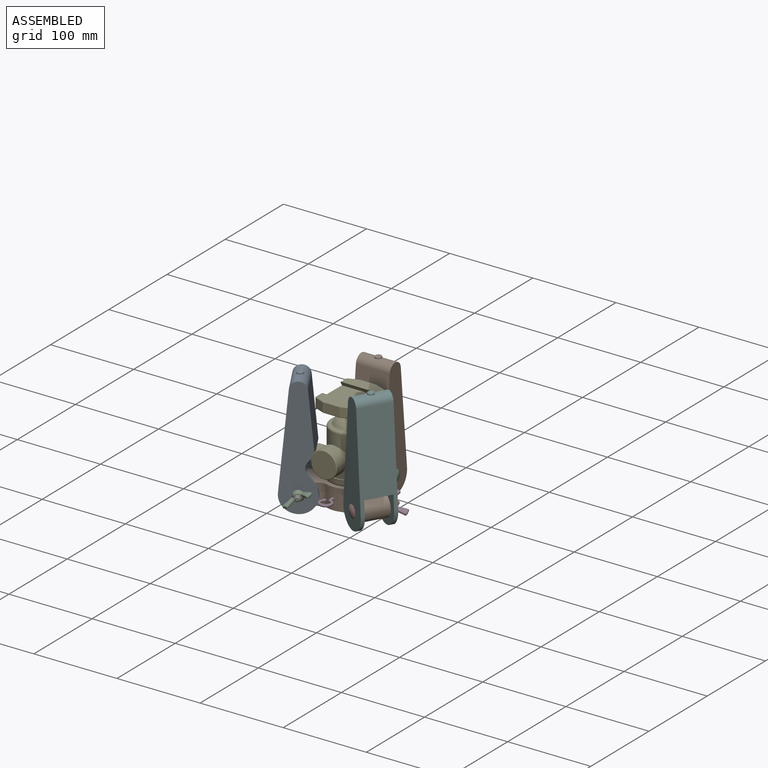
[diagram: assembled view]
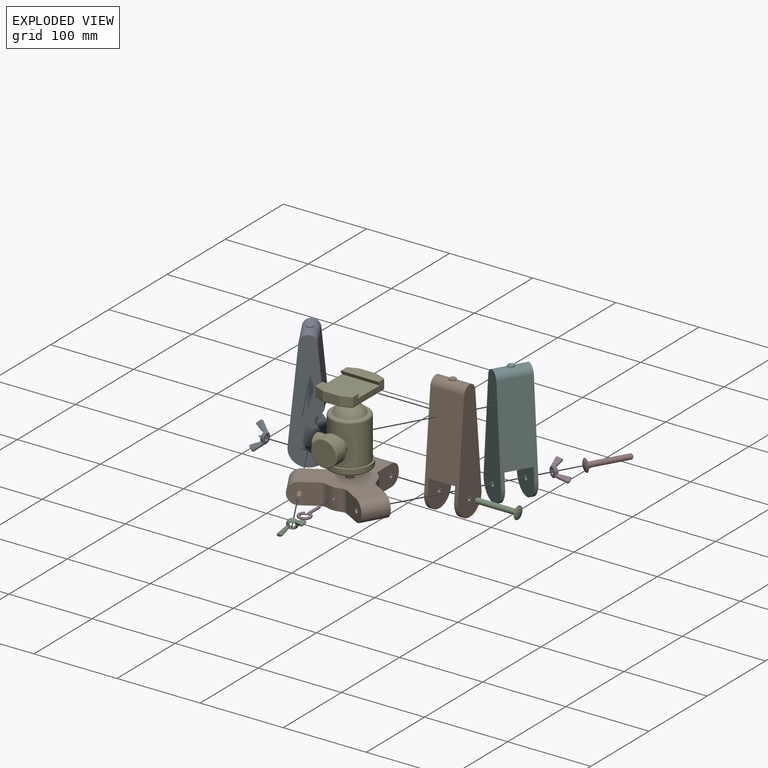
[diagram: exploded view]
GUIDED TOUR — MATED ASSEMBLY WITH SUBASSEMBLIES (Onshape document 450d4b0042331eae24bbd60c, AutoMate assembly 450d4b0042331eae24bbd60c_d984854fb3dad78ea3269862_093a6ce35e05ea192c00fd4e_default)

This assembly has 21 component occurrences arranged in 12 top-level units: 9 individual components plus 3 subassemblies (S0, S1, S2). The tour has two levels: first the top level, where each subassembly is treated as one rigid unit; then each subassembly is toured internally in its own section (nesting deeper than one subassembly level is flattened into its subassembly's section).

Components are labeled P0..P20 across the whole record; subassembly units are labeled S0..S2. A mate is a constraint between two units; its type names the relative motion it leaves free:
  FASTENED — locks the two components together rigidly (no relative motion),
  REVOLUTE — leaves rotation about the listed axis free (a hinge).
Axis/direction vectors are unit vectors and 'through' points are millimeter coordinates, both in the assembly's world frame.

TOP-LEVEL MATES (between units; each subassembly's internal mates are listed in its own section)
  1. FASTENED "Fastened 4": P10 <-> S0, direction (0.500, -0.866, 0.000) through (-52.70, -6.90, -12.70) mm
  2. REVOLUTE "Revolute 2": S1 <-> P16, axis (-1.000, 0.000, 0.000) through (15.88, 49.09, -12.70) mm
  3. FASTENED "Fastened 8": P3 <-> S1, direction (-1.000, 0.000, 0.000) through (20.38, 49.09, -12.70) mm
  4. REVOLUTE "Revolute 1": P7 <-> P16, axis (0.000, 0.000, -1.000) through (0.00, 0.00, 0.00) mm
  5. FASTENED "Fastened 2": P20 <-> P16, direction (0.000, 1.000, 0.000) through (0.00, -15.88, -12.70) mm
  6. REVOLUTE "Revolute 4": S0 <-> P16, axis (-0.500, 0.866, 0.000) through (-34.57, -38.29, -12.70) mm
  7. REVOLUTE "Revolute 3": S2 <-> P16, axis (-0.500, -0.866, 0.000) through (50.45, -10.79, -12.70) mm
  8. FASTENED "Fastened 6": P11 <-> S2, direction (0.500, 0.866, 0.000) through (32.32, -42.19, -12.70) mm
  9. FASTENED "Fastened 5": P6 <-> S2, direction (-0.500, -0.866, 0.000) through (52.70, -6.90, -12.70) mm
  10. FASTENED "Fastened 7": P12 <-> S1, direction (1.000, 0.000, 0.000) through (-20.37, 49.09, -12.70) mm
  11. FASTENED "Fastened 3": P19 <-> S0, direction (-0.500, 0.866, 0.000) through (-32.32, -42.19, -12.70) mm

TOP-LEVEL ASSEMBLY ORDER
  1. P16 — the base component [order heuristic]
  2. S0 — core [order heuristic]
  3. S2 — core [order heuristic]
  4. P3 — core [order heuristic]
  5. P6 — core [order heuristic]
  6. P10 — core [order heuristic]
  7. P11 — core [order heuristic]
  8. P19 — core [order heuristic]
  9. P7 [order verified]
  10. S1 [order verified]
  11. P12 [order verified]
  12. P20 [order verified]
Order-tag legend:
  [order verified] — this step's position reverses a verified removal order: the component was checked to insert without passing through the ones already placed.
  [order heuristic] — the first 8 components form the assembly's core: parts whose collision-free extraction could not be verified, listed in mate-graph order.

Of the 21 component occurrences, 4 carry the full construction recipe — the FeatureScript program that regenerates the part's solid from scratch; the rest are supplied as boundary geometry only. Each toured unit is shown spotlighted twice — assembled, then exploded with a leader line back to its socket (green = recipe-attached component, orange = geometry-only, blue = subassembly unit; the rest desaturated gray).
NOTE — this tour is split across 2 documents so each fits a 32k-token context. This is document 1: the component sections continue in the remaining 1 document, each repeating the header above.
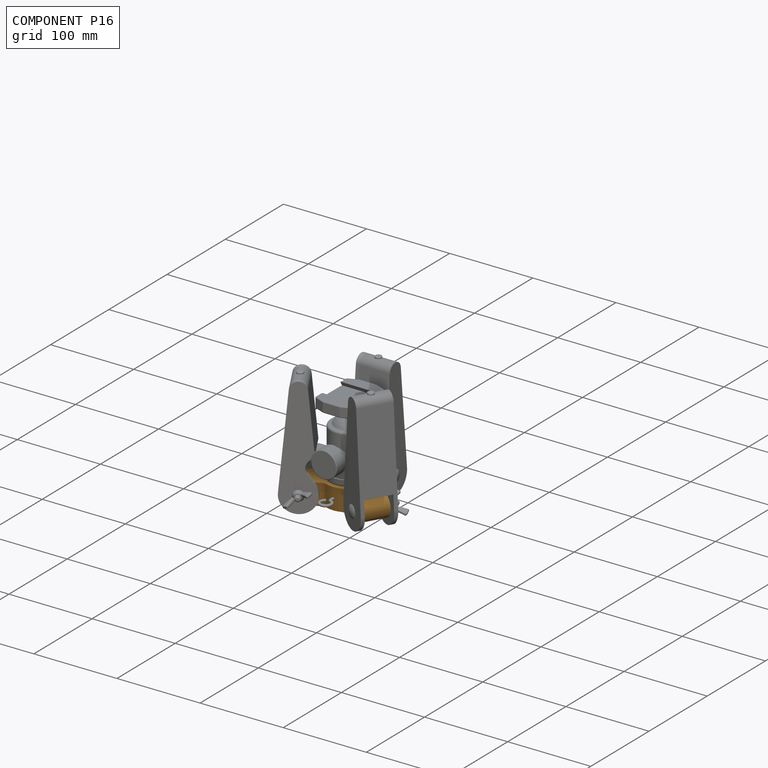
[diagram: component P16 — assembled]
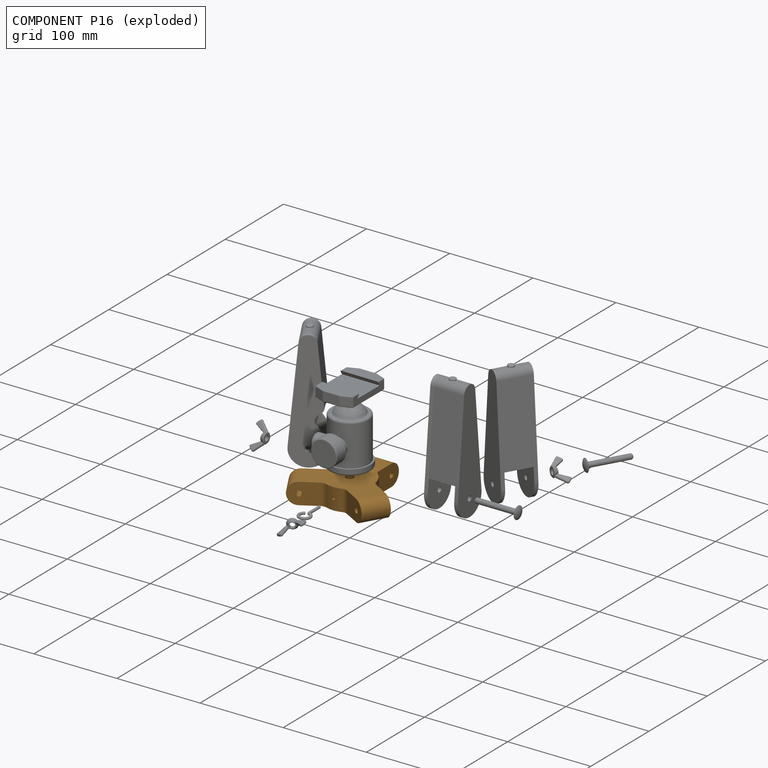
[diagram: component P16 — exploded]
COMPONENT P16 — geometry summary (no construction recipe available for this part):
  bounding box: 122.9 x 106.4 x 25.4 mm
  B-rep topology: 1 solid, 28 faces, 152 edges
  volume: 135256 mm^3 (41% of its bounding box)
  symmetry: mirror-symmetric across its x mid-plane
Held by: REVOLUTE mate "Revolute 2" to P2; REVOLUTE mate "Revolute 1" to P7; FASTENED mate "Fastened 2" to P20; REVOLUTE mate "Revolute 4" to P0; REVOLUTE mate "Revolute 3" to P9.
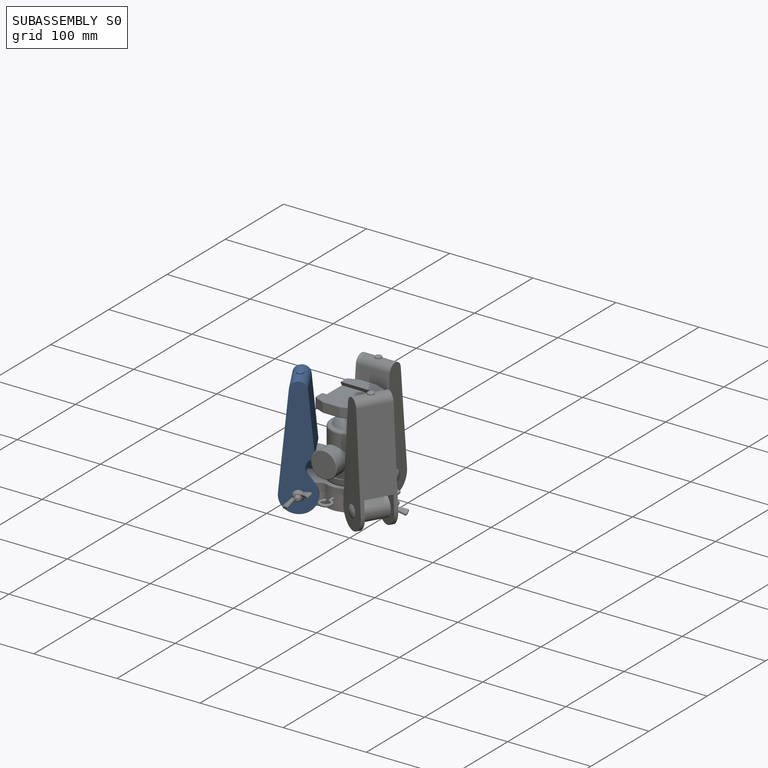
[diagram: subassembly S0 — assembled]
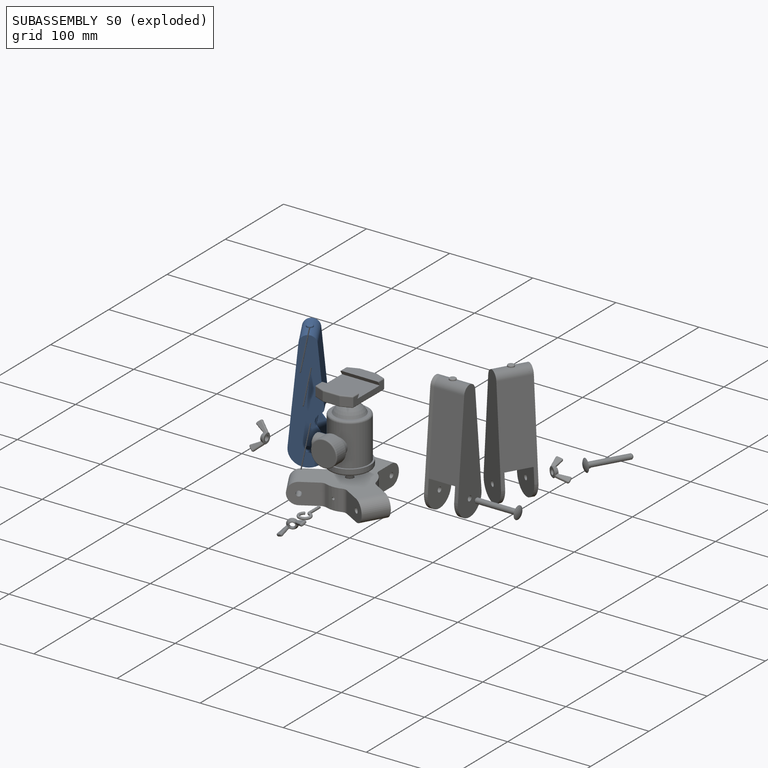
[diagram: subassembly S0 — exploded]
SUBASSEMBLY S0 — 4 components (P0, P1, P4, P8), of which 0 recipe-attached; toured below.
Held by: FASTENED mate "Fastened 4" to P10; REVOLUTE mate "Revolute 4" to P16; FASTENED mate "Fastened 3" to P19.
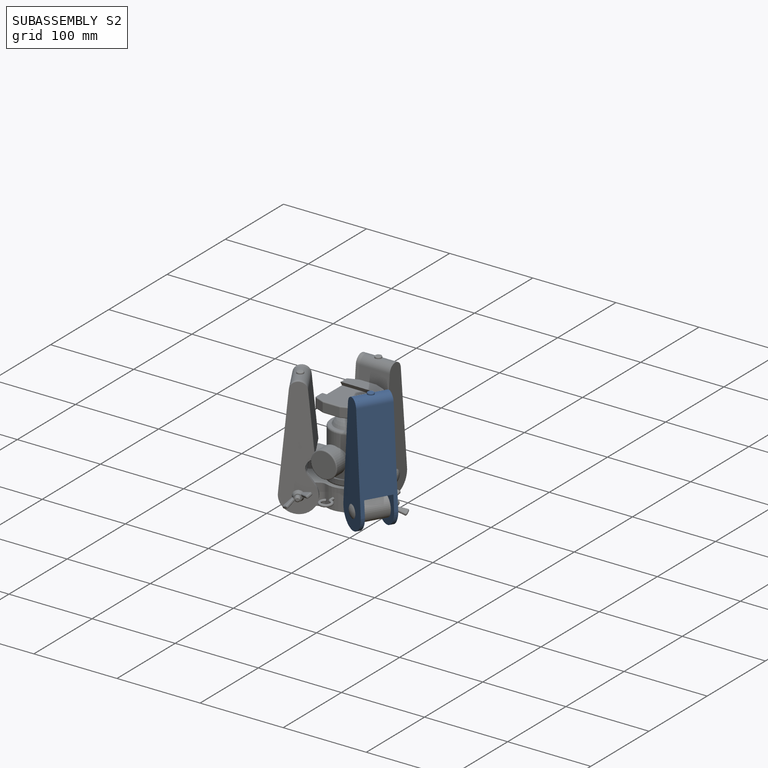
[diagram: subassembly S2 — assembled]
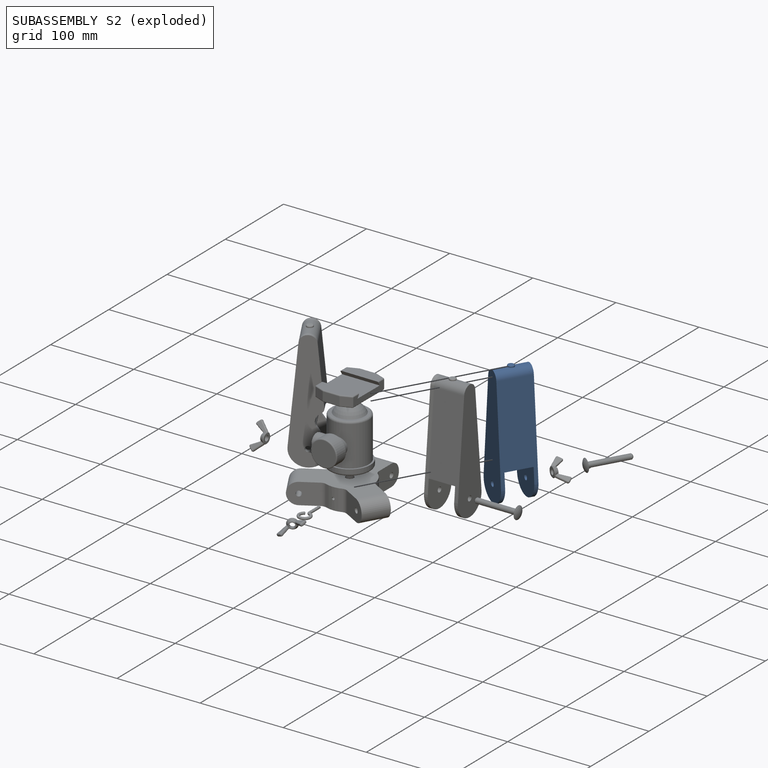
[diagram: subassembly S2 — exploded]
SUBASSEMBLY S2 — 4 components (P9, P15, P17, P18), of which 0 recipe-attached; toured below.
Held by: REVOLUTE mate "Revolute 3" to P16; FASTENED mate "Fastened 6" to P11; FASTENED mate "Fastened 5" to P6.
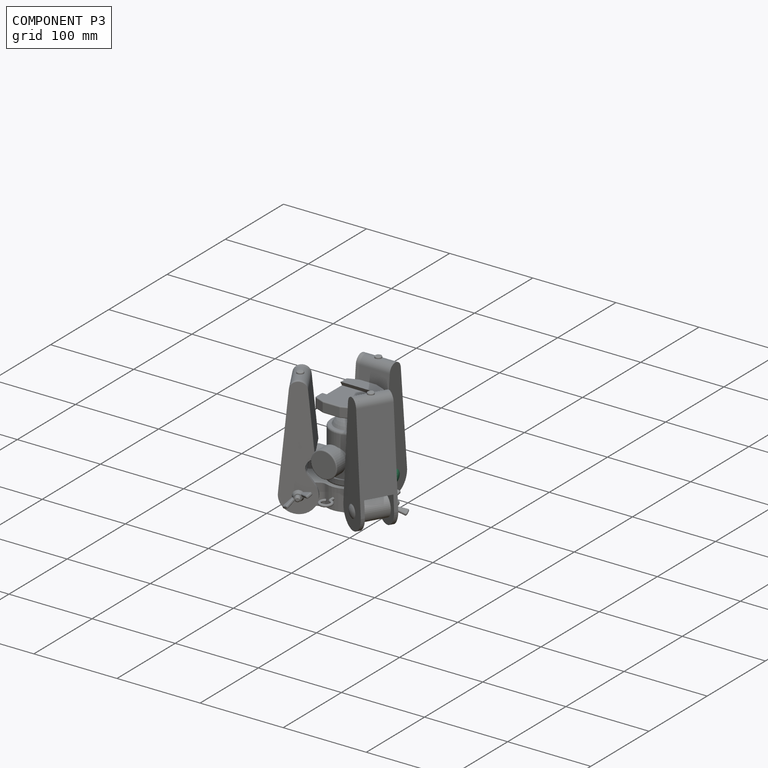
[diagram: component P3 — assembled]
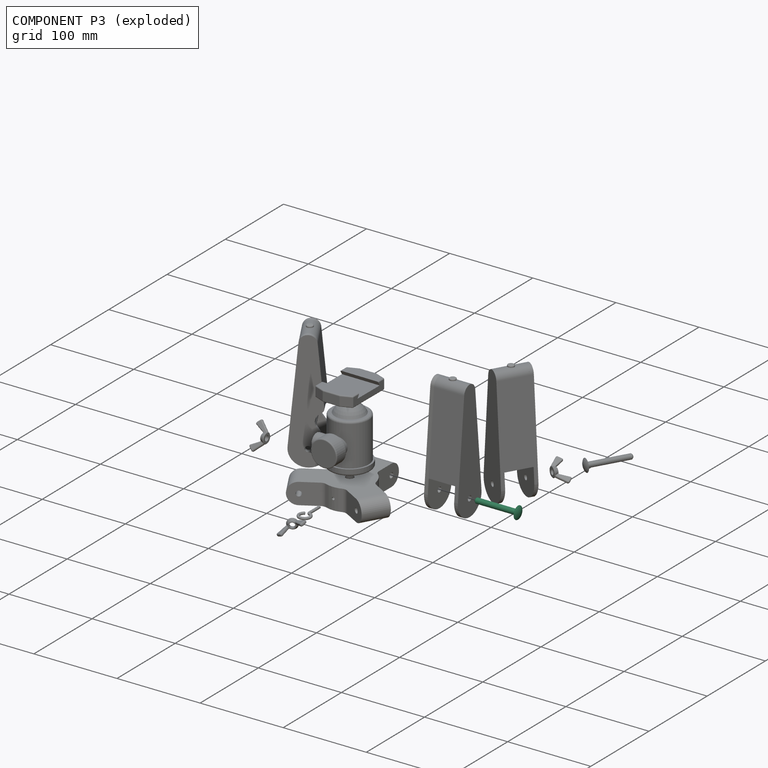
[diagram: component P3 — exploded]
COMPONENT P3 — recipe-attached (CADFS 00814355, mesh-verified: the recipe's output STEP matches this component's geometry to below the mesh-comparison resolution (tessellation chordal tolerance ~0.0863 mm)).
Held by: FASTENED mate "Fastened 8" to P2.
Construction recipe (FeatureScript — the CAD program that rebuilds this solid; sketch coordinates are in the units given by the * unit suffixes, e.g. mm):

FeatureScript 1560;
import(path : "onshape/std/geometry.fs", version : "1560.0");
import(path : "onshape/std/common.fs", version : "1560.0");
const mm = millimeter;
const VERTEX = EntityType.VERTEX;
const EDGE = EntityType.EDGE;
const FACE = EntityType.FACE;
const BODY = EntityType.BODY;
function v(x, y){return vector(x, y);}
function OD(order){return orderDisambiguation(order);}
function OSD(set){return originalSetDisambiguation(set);}
function TD(topology){return topologyDisambiguation(topology);}
function TDD(query){return trueDependencyDisambiguation(query);}
function sQuery(a, b, c) {return sketchEntityQuery(a, b, c);}

annotation { "Feature Type Name" : "Feature", "Feature Type Description" : "" }
export const myFeature = defineFeature(function(context is Context, id is Id, definition is map)
    precondition{}
    {
        {
            var Q0;
            Q0=qCreatedBy(makeId("Front.planeOp"),FACE);
            var sketch = newSketch(context, id + "F0", { "sketchPlane" : qUnion([Q0])});
            skLineSegment(sketch, "E0", {"start": v(0, 42.6) * mm, "end": v(0, -55.7) * mm, "construction": true});
            skLineSegment(sketch, "E1", {"start": v(0, -50.8) * mm, "end": v(3.18, -50.8) * mm});
            skLineSegment(sketch, "E2", {"start": v(3.18, -50.8) * mm, "end": v(3.18, 0) * mm});
            skLineSegment(sketch, "E3", {"start": v(3.18, 0) * mm, "end": v(7.62, 0) * mm});
            skCircle(sketch, "E4", {"center": v(0, -10.16) * mm, "radius": 12.7 * mm});
            skLineSegment(sketch, "E5", {"start": v(0, -50.8) * mm, "end": v(0, 2.54) * mm});
            skSolve(sketch);
        }
        {
            var Q0;
            {var subQ5=sQuery(id+"F0.wireOp",EDGE,"E3");Q0=makeQuery(id+"F0.imprint","IMPRINT",FACE,{"disambiguationData":[TD([[makeQuery(id+"F0.imprint","IMPRINT",EDGE,{"derivedFrom":subQ5}),1.0]])]});}
            var Q1;
            {var subQ0=sQuery(id+"F0.wireOp",EDGE,"E1");Q1=makeQuery(id+"F0.imprint","IMPRINT",FACE,{"disambiguationData":[TD([[makeQuery(id+"F0.imprint","IMPRINT",EDGE,{"derivedFrom":subQ0}),1.0]])]});}
            var Q2;
            Q2=sQuery(id+"F0.wireOp",EDGE,"E0");
            revolve(context, id + "F1", {"surfaceOperationType" : NewSurfaceOperationType.NEW, "entities" : qUnion([Q0, Q1]), "axis" : qUnion([Q2]), "revolveType" : RevolveType.FULL});
        }
        {
            var Q0;
            Q0=makeQuery(id+"F1.opRevolve","SWEPT_EDGE",EDGE,{"disambiguationData":[OSD([sQuery(id+"F0.wireOp",EDGE,"E1"),sQuery(id+"F0.wireOp",EDGE,"E2")])]});
            chamfer(context, id + "F2", {"entities" : qUnion([Q0]), "width" : 1.27 * mm, "tangentPropagation" : true});
        }
    });
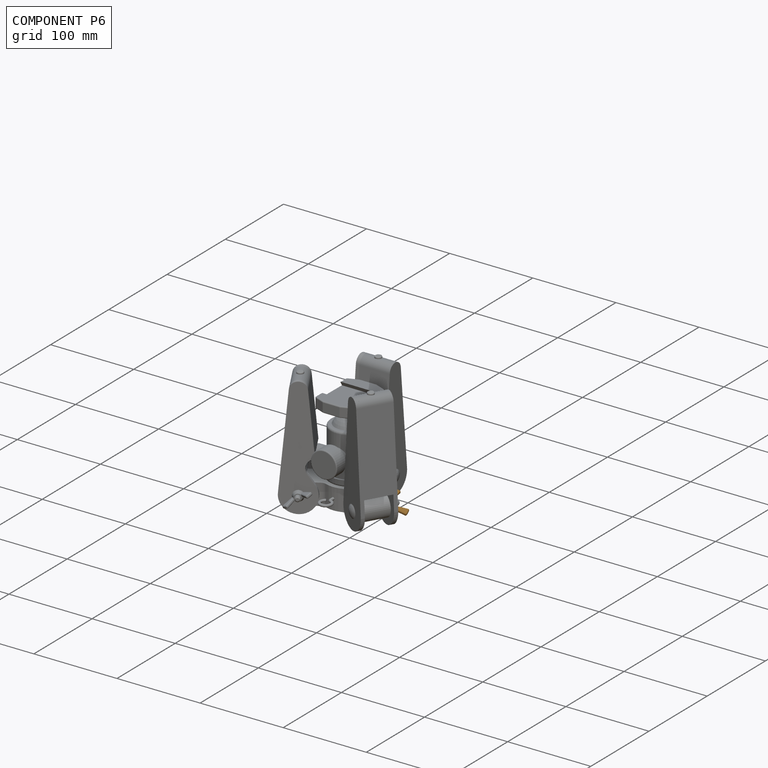
[diagram: component P6 — assembled]
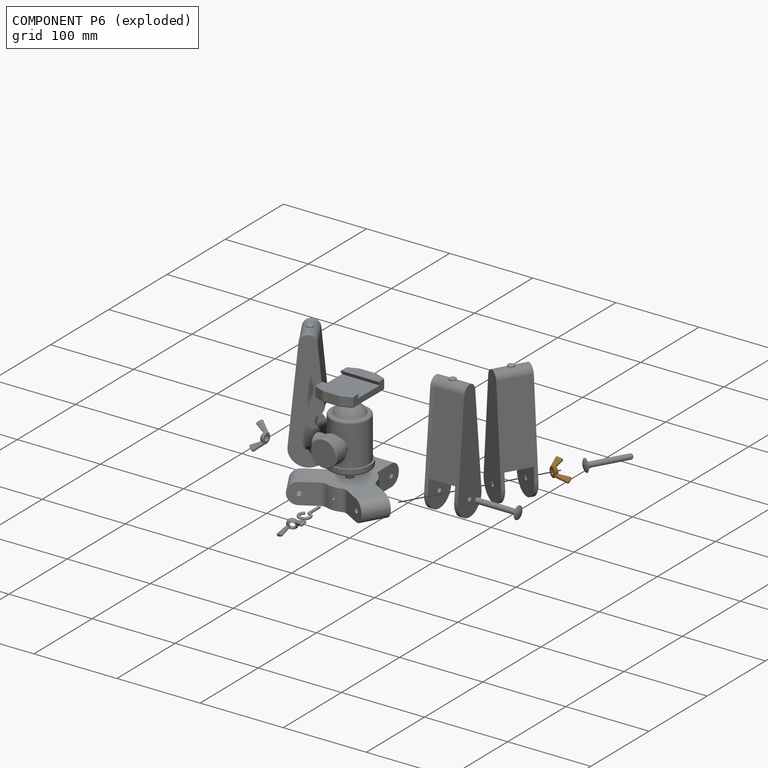
[diagram: component P6 — exploded]
COMPONENT P6 — geometry summary (no construction recipe available for this part):
  bounding box: 33.4 x 16.8 x 13.0 mm
  B-rep topology: 1 solid, 41 faces, 198 edges
  volume: 898 mm^3 (12% of its bounding box)
  symmetry: 2-fold rotationally symmetric about the z axis; mirror-symmetric across its x mid-plane, y mid-plane
Held by: FASTENED mate "Fastened 5" to P9.
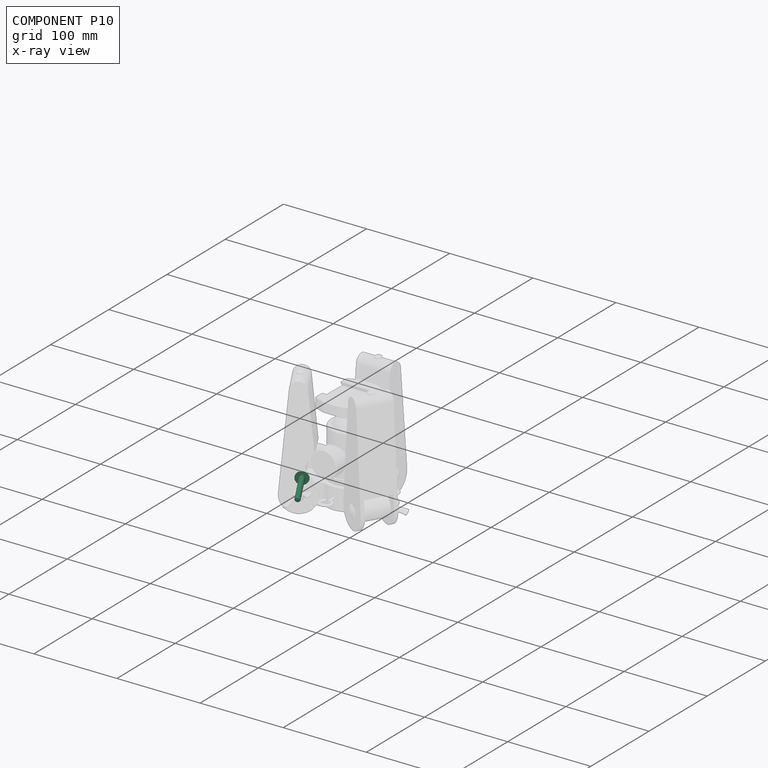
[diagram: component P10 — x-ray view]
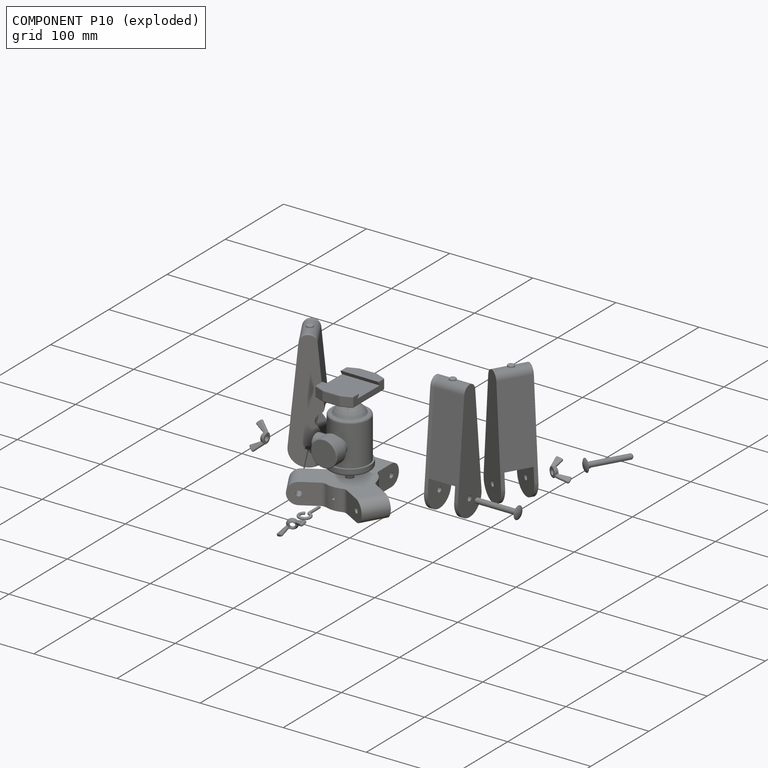
[diagram: component P10 — exploded]
COMPONENT P10 — same part as P3 (CADFS 00814355); its construction recipe is shown at P3.
Held by: FASTENED mate "Fastened 4" to P0.
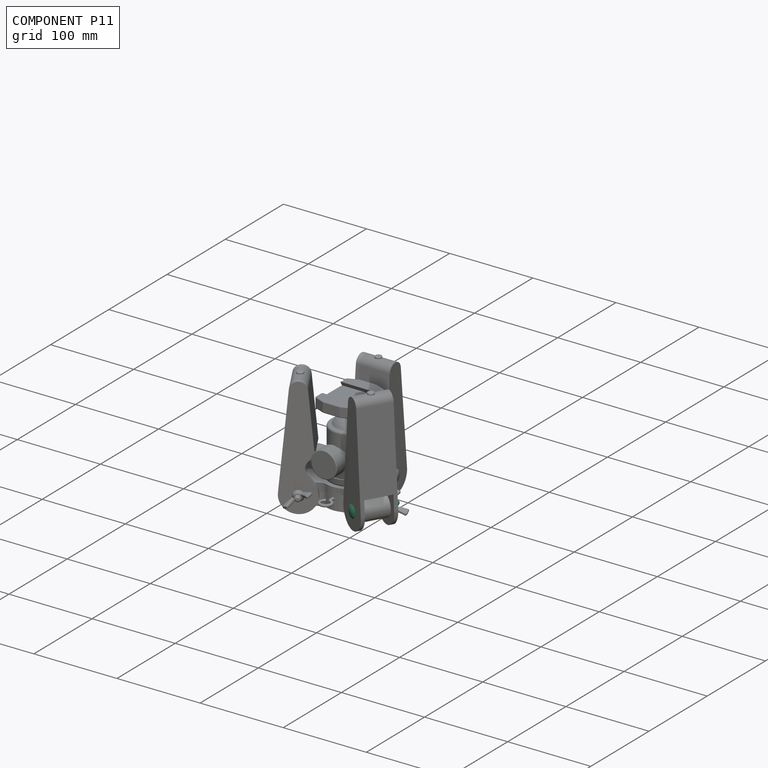
[diagram: component P11 — assembled]
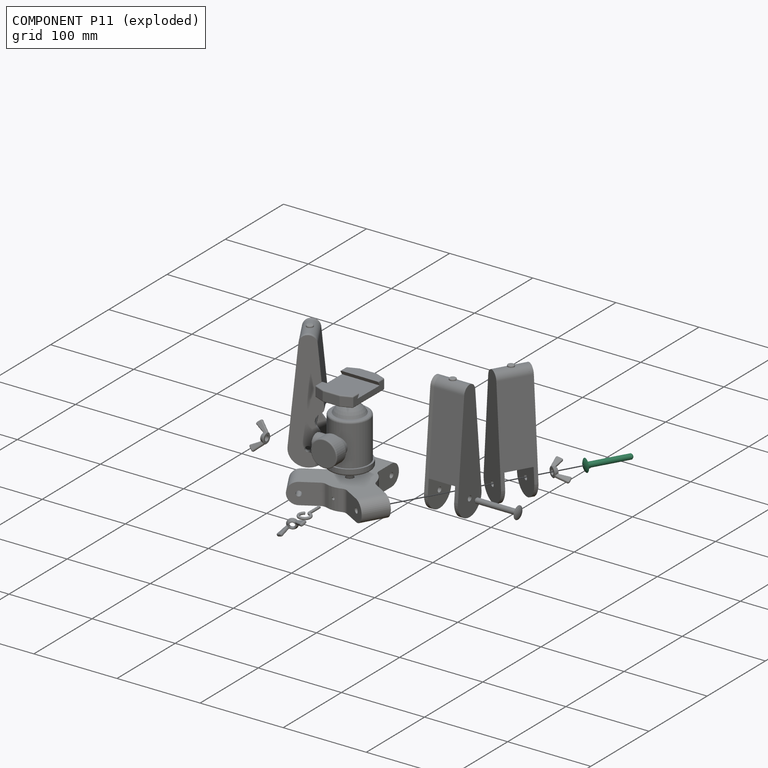
[diagram: component P11 — exploded]
COMPONENT P11 — same part as P3 (CADFS 00814355); its construction recipe is shown at P3.
Held by: FASTENED mate "Fastened 6" to P9.
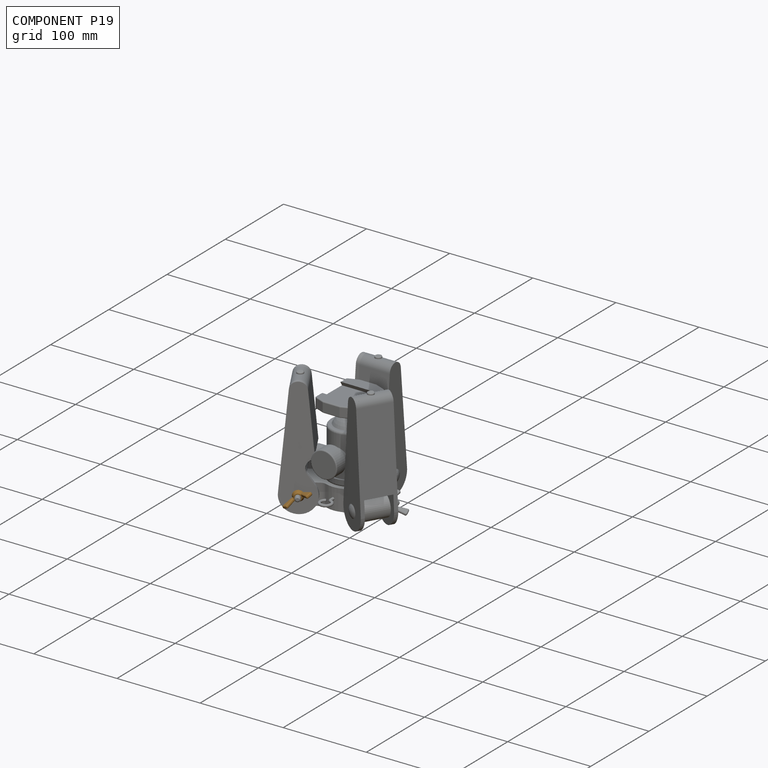
[diagram: component P19 — assembled]
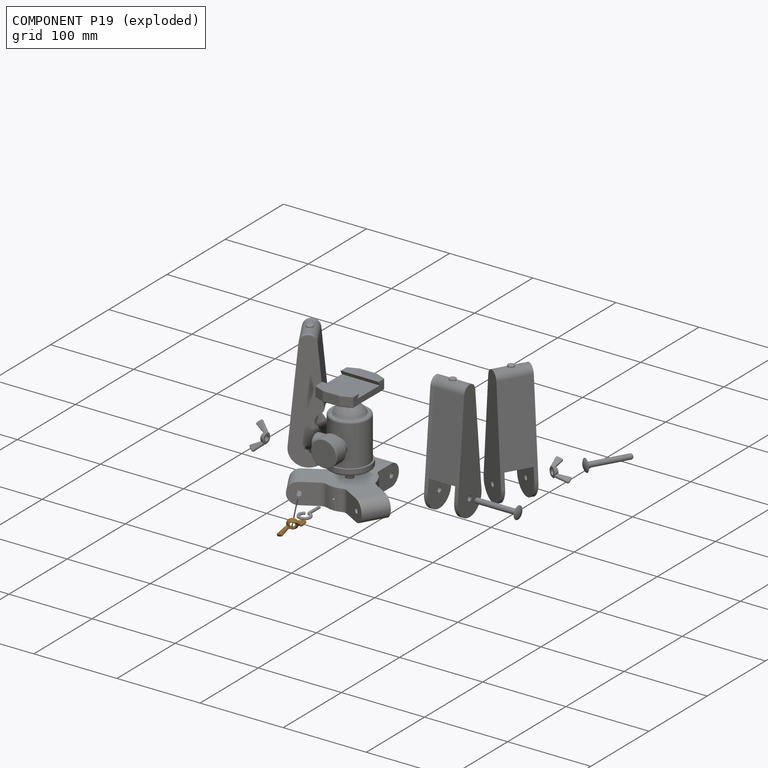
[diagram: component P19 — exploded]
COMPONENT P19 — geometry summary (no construction recipe available for this part):
  bounding box: 33.4 x 16.8 x 13.0 mm
  B-rep topology: 1 solid, 41 faces, 198 edges
  volume: 898 mm^3 (12% of its bounding box)
  symmetry: 2-fold rotationally symmetric about the z axis; mirror-symmetric across its x mid-plane, y mid-plane
Held by: FASTENED mate "Fastened 3" to P0.
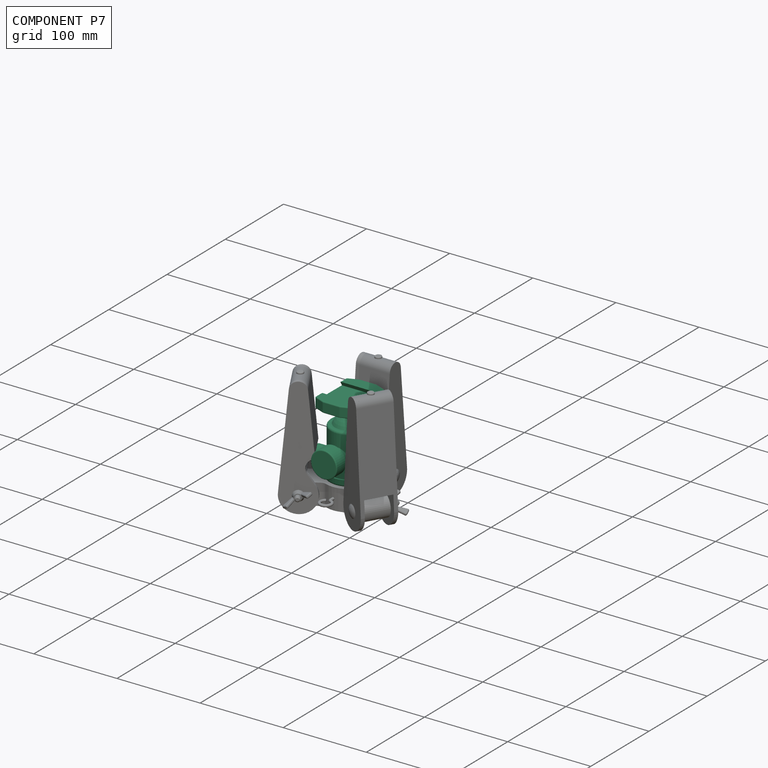
[diagram: component P7 — assembled]
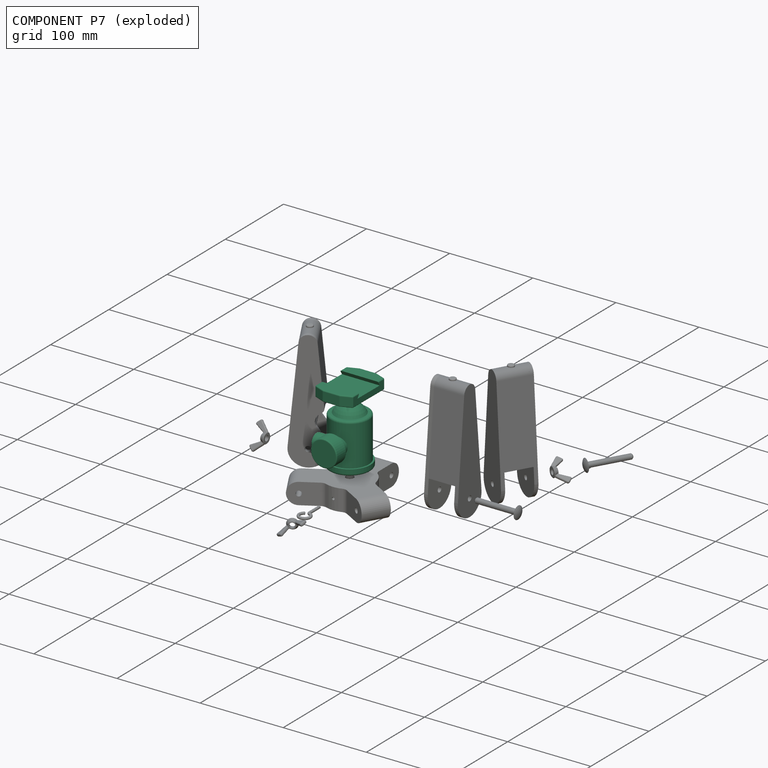
[diagram: component P7 — exploded]
COMPONENT P7 — recipe-attached (CADFS 00814359, mesh-verified: the recipe's output STEP matches this component's geometry to below the mesh-comparison resolution (tessellation chordal tolerance ~0.206 mm)).
Held by: REVOLUTE mate "Revolute 1" to P16.
Construction recipe (FeatureScript — the CAD program that rebuilds this solid; sketch coordinates are in the units given by the * unit suffixes, e.g. mm):

FeatureScript 1560;
import(path : "onshape/std/geometry.fs", version : "1560.0");
import(path : "onshape/std/common.fs", version : "1560.0");
const mm = millimeter;
const VERTEX = EntityType.VERTEX;
const EDGE = EntityType.EDGE;
const FACE = EntityType.FACE;
const BODY = EntityType.BODY;
function v(x, y){return vector(x, y);}
function OD(order){return orderDisambiguation(order);}
function OSD(set){return originalSetDisambiguation(set);}
function TD(topology){return topologyDisambiguation(topology);}
function TDD(query){return trueDependencyDisambiguation(query);}
function sQuery(a, b, c) {return sketchEntityQuery(a, b, c);}

annotation { "Feature Type Name" : "Feature", "Feature Type Description" : "" }
export const myFeature = defineFeature(function(context is Context, id is Id, definition is map)
    precondition{}
    {
        {
            var Q0;
            Q0=qCreatedBy(makeId("Right.planeOp"),FACE);
            var sketch = newSketch(context, id + "F0", { "sketchPlane" : qUnion([Q0])});
            skLineSegment(sketch, "E0", {"start": v(0, -49.38) * mm, "end": v(0, 104.09) * mm, "construction": true});
            skLineSegment(sketch, "E1", {"start": v(0, 0) * mm, "end": v(-24.9, 0) * mm});
            skLineSegment(sketch, "E2", {"start": v(-24.9, 0) * mm, "end": v(-24.9, 7.62) * mm});
            skLineSegment(sketch, "E3", {"start": v(-24.9, 7.62) * mm, "end": v(-22.86, 7.62) * mm});
            skLineSegment(sketch, "E4", {"start": v(-22.86, 7.62) * mm, "end": v(-22.86, 58.42) * mm});
            skLineSegment(sketch, "E5", {"start": v(-22.86, 58.42) * mm, "end": v(-17.78, 58.42) * mm});
            skArc(sketch, "E6", {"start": v(-7.62, 68.58) * mm, "mid": v(-13.68, 64.48) * mm, "end": v(-17.78, 58.42) * mm});
            skLineSegment(sketch, "E7", {"start": v(-7.62, 68.58) * mm, "end": v(-7.62, 78.74) * mm});
            skLineSegment(sketch, "E8", {"start": v(-7.62, 78.74) * mm, "end": v(0, 78.74) * mm});
            skLineSegment(sketch, "E9", {"start": v(0, 78.74) * mm, "end": v(0, 0) * mm});
            skSolve(sketch);
        }
        {
            var Q0;
            Q0 = qSketchRegion(id + "F0", true);
            var Q1;
            Q1=sQuery(id+"F0.wireOp",EDGE,"E0");
            revolve(context, id + "F1", {"surfaceOperationType" : NewSurfaceOperationType.NEW, "entities" : qUnion([Q0]), "axis" : qUnion([Q1]), "revolveType" : RevolveType.FULL});
        }
        {
            var Q0;
            Q0=makeQuery(id+"F1.opRevolve","SWEPT_FACE",FACE,{"disambiguationData":[OSD([sQuery(id+"F0.wireOp",EDGE,"E8")])]});
            var sketch = newSketch(context, id + "F2", { "sketchPlane" : qUnion([Q0])});
            skLineSegment(sketch, "E10.bottom", {"start": v(-31.75, 22.86) * mm, "end": v(31.75, 22.86) * mm});
            skLineSegment(sketch, "E10.top", {"start": v(-31.75, -22.86) * mm, "end": v(31.75, -22.86) * mm});
            skLineSegment(sketch, "E10.left", {"start": v(-31.75, 22.86) * mm, "end": v(-31.75, -22.86) * mm});
            skLineSegment(sketch, "E10.right", {"start": v(31.75, 22.86) * mm, "end": v(31.75, -22.86) * mm});
            skPoint(sketch, "E10.middle", {"position": v(0, 0) * mm});
            skSolve(sketch);
        }
        {
            var Q0;
            Q0 = qSketchRegion(id + "F2", true);
            extrude(context, id + "F3", {"entities" : qUnion([Q0]), "operationType" : NewBodyOperationType.ADD, "depth" : 12.7 * mm, "offsetDistance" : 25.4 * mm});
        }
        {
            var Q0;
            Q0=makeQuery(id+"F3.opExtrude","SWEPT_FACE",FACE,{"disambiguationData":[OSD([sQuery(id+"F2.wireOp",EDGE,"E10.top")])]});
            var sketch = newSketch(context, id + "F4", { "sketchPlane" : qUnion([Q0])});
            skLineSegment(sketch, "E11.0.0", {"start": v(-31.75, 78.74) * mm, "end": v(31.75, 78.74) * mm, "construction": true});
            skLineSegment(sketch, "E11.0.1", {"start": v(31.75, 78.74) * mm, "end": v(31.75, 91.44) * mm, "construction": true});
            skLineSegment(sketch, "E11.0.2", {"start": v(31.75, 91.44) * mm, "end": v(-31.75, 91.44) * mm, "construction": true});
            skLineSegment(sketch, "E11.0.3", {"start": v(-31.75, 91.44) * mm, "end": v(-31.75, 78.74) * mm, "construction": true});
            skLineSegment(sketch, "E12", {"start": v(-18.8, 86.36) * mm, "end": v(18.8, 86.36) * mm});
            skLineSegment(sketch, "E13", {"start": v(18.8, 86.36) * mm, "end": v(15.87, 91.44) * mm});
            skLineSegment(sketch, "E14", {"start": v(15.87, 91.44) * mm, "end": v(-15.88, 91.44) * mm});
            skLineSegment(sketch, "E15", {"start": v(-15.88, 91.44) * mm, "end": v(-18.8, 86.36) * mm});
            skLineSegment(sketch, "E16", {"start": v(0, 78.74) * mm, "end": v(0, 91.44) * mm, "construction": true});
            skSolve(sketch);
        }
        {
            var Q0;
            Q0 = qSketchRegion(id + "F4", true);
            extrude(context, id + "F5", {"entities" : qUnion([Q0]), "operationType" : NewBodyOperationType.REMOVE, "endBound" : BoundingType.THROUGH_ALL, "oppositeDirection" : true, "depth" : 25.4 * mm, "offsetDistance" : 25.4 * mm});
        }
        {
            var Q0;
            Q0=qCreatedBy(makeId("Right.planeOp"),FACE);
            var sketch = newSketch(context, id + "F6", { "sketchPlane" : qUnion([Q0])});
            skLineSegment(sketch, "E17", {"start": v(0, 16.51) * mm, "end": v(-33.66, 16.51) * mm, "construction": true});
            skLineSegment(sketch, "E18.bottom", {"start": v(0, 21.6) * mm, "end": v(-26.67, 21.6) * mm});
            skLineSegment(sketch, "E18.top", {"start": v(0, 11.43) * mm, "end": v(-26.67, 11.43) * mm});
            skLineSegment(sketch, "E18.left", {"start": v(0, 21.6) * mm, "end": v(0, 11.43) * mm});
            skLineSegment(sketch, "E18.right", {"start": v(-26.67, 21.6) * mm, "end": v(-26.67, 11.43) * mm});
            skPoint(sketch, "E18.middle", {"position": v(-13.34, 16.51) * mm});
            skLineSegment(sketch, "E19.bottom", {"start": v(-26.67, 25.4) * mm, "end": v(-40.64, 25.4) * mm});
            skLineSegment(sketch, "E19.top", {"start": v(-26.67, 7.62) * mm, "end": v(-40.64, 7.62) * mm});
            skLineSegment(sketch, "E19.left", {"start": v(-26.67, 25.4) * mm, "end": v(-26.67, 7.62) * mm});
            skLineSegment(sketch, "E19.right", {"start": v(-40.64, 25.4) * mm, "end": v(-40.64, 7.62) * mm});
            skPoint(sketch, "E19.middle", {"position": v(-33.66, 16.51) * mm});
            skLineSegment(sketch, "E20", {"start": v(22.86, 7.62) * mm, "end": v(22.86, 58.42) * mm, "construction": true});
            skLineSegment(sketch, "E21", {"start": v(-22.86, 58.42) * mm, "end": v(-22.86, 7.62) * mm, "construction": true});
            skLineSegment(sketch, "E22", {"start": v(0, 16.51) * mm, "end": v(-40.64, 16.51) * mm});
            skSolve(sketch);
        }
        {
            var Q0;
            {var subQ1=sQuery(id+"F6.wireOp",EDGE,"E19.bottom");Q0=makeQuery(id+"F6.imprint","IMPRINT",FACE,{"disambiguationData":[TD([[makeQuery(id+"F6.imprint","IMPRINT",EDGE,{"derivedFrom":subQ1}),1.0]])]});}
            var Q1;
            {var subQ0=sQuery(id+"F6.wireOp",EDGE,"E18.bottom");Q1=makeQuery(id+"F6.imprint","IMPRINT",FACE,{"disambiguationData":[TD([[makeQuery(id+"F6.imprint","IMPRINT",EDGE,{"derivedFrom":subQ0}),1.0]])]});}
            var Q2;
            Q2=sQuery(id+"F6.wireOp",EDGE,"E22");
            revolve(context, id + "F7", {"operationType" : NewBodyOperationType.ADD, "surfaceOperationType" : NewSurfaceOperationType.NEW, "entities" : qUnion([Q0, Q1]), "axis" : qUnion([Q2]), "revolveType" : RevolveType.FULL});
        }
        {
            var Q0;
            Q0=qCreatedBy(makeId("Front.planeOp"),FACE);
            var sketch = newSketch(context, id + "F8", { "sketchPlane" : qUnion([Q0])});
            skLineSegment(sketch, "E23", {"start": v(0, 29.85) * mm, "end": v(60.7, 29.85) * mm, "construction": true});
            skLineSegment(sketch, "E24.bottom", {"start": v(0, 41.27) * mm, "end": v(27.94, 41.27) * mm});
            skLineSegment(sketch, "E24.top", {"start": v(0, 18.41) * mm, "end": v(27.94, 18.41) * mm});
            skLineSegment(sketch, "E24.left", {"start": v(0, 41.27) * mm, "end": v(0, 18.41) * mm});
            skLineSegment(sketch, "E24.right", {"start": v(27.94, 41.27) * mm, "end": v(27.94, 18.41) * mm});
            skPoint(sketch, "E24.middle", {"position": v(13.97, 29.85) * mm});
            skLineSegment(sketch, "E25.bottom", {"start": v(27.94, 45.72) * mm, "end": v(44.45, 45.72) * mm});
            skLineSegment(sketch, "E25.top", {"start": v(27.94, 13.97) * mm, "end": v(44.45, 13.97) * mm});
            skLineSegment(sketch, "E25.left", {"start": v(27.94, 45.72) * mm, "end": v(27.94, 13.97) * mm});
            skLineSegment(sketch, "E25.right", {"start": v(44.45, 45.72) * mm, "end": v(44.45, 13.97) * mm});
            skPoint(sketch, "E25.middle", {"position": v(36.2, 29.85) * mm});
            skLineSegment(sketch, "E26", {"start": v(0, 29.85) * mm, "end": v(44.45, 29.85) * mm});
            skLineSegment(sketch, "E27", {"start": v(22.86, 7.62) * mm, "end": v(22.86, 58.42) * mm, "construction": true});
            skLineSegment(sketch, "E28", {"start": v(-22.86, 58.42) * mm, "end": v(-22.86, 7.62) * mm, "construction": true});
            skSolve(sketch);
        }
        {
            var Q0;
            {var subQ1=sQuery(id+"F8.wireOp",EDGE,"E25.bottom");Q0=makeQuery(id+"F8.imprint","IMPRINT",FACE,{"disambiguationData":[TD([[makeQuery(id+"F8.imprint","IMPRINT",EDGE,{"derivedFrom":subQ1}),-1.0]])]});}
            var Q1;
            {var subQ0=sQuery(id+"F8.wireOp",EDGE,"E24.bottom");Q1=makeQuery(id+"F8.imprint","IMPRINT",FACE,{"disambiguationData":[TD([[makeQuery(id+"F8.imprint","IMPRINT",EDGE,{"derivedFrom":subQ0}),-1.0]])]});}
            var Q2;
            Q2=sQuery(id+"F8.wireOp",EDGE,"E23");
            revolve(context, id + "F9", {"operationType" : NewBodyOperationType.ADD, "surfaceOperationType" : NewSurfaceOperationType.NEW, "entities" : qUnion([Q0, Q1]), "axis" : qUnion([Q2]), "revolveType" : RevolveType.FULL});
        }
        {
            var Q0;
            Q0=sQuery(id+"F0.wireOp",EDGE,"E0");
            var Q1;
            Q1=qCreatedBy(makeId("Right.planeOp"),FACE);
            cPlane(context, id + "F10", {"entities" : qUnion([Q0, Q1]), "cplaneType" : CPlaneType.LINE_ANGLE, "offset" : 25.4 * mm, "angle" : 37 * degree, "oppositeDirection" : true, "width" : 152.4 * mm, "height" : 152.4 * mm});
        }
        {
            var Q0;
            Q0=qCreatedBy(id+"F10.planeOp",FACE);
            var sketch = newSketch(context, id + "F11", { "sketchPlane" : qUnion([Q0])});
            skLineSegment(sketch, "E29", {"start": v(0, 30.48) * mm, "end": v(40.7, 30.48) * mm, "construction": true});
            skLineSegment(sketch, "E30.bottom", {"start": v(0, 37.47) * mm, "end": v(27.94, 37.47) * mm});
            skLineSegment(sketch, "E30.top", {"start": v(0, 23.5) * mm, "end": v(27.94, 23.5) * mm});
            skLineSegment(sketch, "E30.left", {"start": v(0, 37.47) * mm, "end": v(0, 23.5) * mm});
            skLineSegment(sketch, "E30.right", {"start": v(27.94, 37.47) * mm, "end": v(27.94, 23.5) * mm});
            skPoint(sketch, "E30.middle", {"position": v(13.97, 30.48) * mm});
            skLineSegment(sketch, "E31.bottom", {"start": v(27.94, 40.64) * mm, "end": v(44.45, 40.64) * mm});
            skLineSegment(sketch, "E31.top", {"start": v(27.94, 20.32) * mm, "end": v(44.45, 20.32) * mm});
            skLineSegment(sketch, "E31.left", {"start": v(27.94, 40.64) * mm, "end": v(27.94, 20.32) * mm});
            skLineSegment(sketch, "E31.right", {"start": v(44.45, 40.64) * mm, "end": v(44.45, 20.32) * mm});
            skPoint(sketch, "E31.middle", {"position": v(36.2, 30.48) * mm});
            skLineSegment(sketch, "E32", {"start": v(22.86, 7.62) * mm, "end": v(22.86, 58.42) * mm, "construction": true});
            skLineSegment(sketch, "E33", {"start": v(-22.86, 58.42) * mm, "end": v(-22.86, 7.62) * mm, "construction": true});
            skLineSegment(sketch, "E34", {"start": v(0, 30.48) * mm, "end": v(44.45, 30.48) * mm});
            skSolve(sketch);
        }
        {
            var Q0;
            {var subQ0=sQuery(id+"F11.wireOp",EDGE,"E30.bottom");Q0=makeQuery(id+"F11.imprint","IMPRINT",FACE,{"disambiguationData":[TD([[makeQuery(id+"F11.imprint","IMPRINT",EDGE,{"derivedFrom":subQ0}),-1.0]])]});}
            var Q1;
            {var subQ1=sQuery(id+"F11.wireOp",EDGE,"E31.bottom");Q1=makeQuery(id+"F11.imprint","IMPRINT",FACE,{"disambiguationData":[TD([[makeQuery(id+"F11.imprint","IMPRINT",EDGE,{"derivedFrom":subQ1}),-1.0]])]});}
            var Q2;
            Q2=sQuery(id+"F11.wireOp",EDGE,"E34");
            revolve(context, id + "F12", {"operationType" : NewBodyOperationType.ADD, "surfaceOperationType" : NewSurfaceOperationType.NEW, "entities" : qUnion([Q0, Q1]), "axis" : qUnion([Q2]), "revolveType" : RevolveType.FULL});
        }
        {
            var Q0;
            Q0=makeQuery(id+"F1.opRevolve","SWEPT_EDGE",EDGE,{"disambiguationData":[OSD([sQuery(id+"F0.wireOp",EDGE,"E1"),sQuery(id+"F0.wireOp",EDGE,"E2")])]});
            var Q1;
            Q1=makeQuery(id+"F1.opRevolve","SWEPT_EDGE",EDGE,{"disambiguationData":[OSD([sQuery(id+"F0.wireOp",EDGE,"E4"),sQuery(id+"F0.wireOp",EDGE,"E5")])]});
            fillet(context, id + "F13", {"entities" : qUnion([Q0, Q1]), "radius" : 2.54 * mm, "tangentPropagation" : true, "allowEdgeOverflow" : false});
        }
        {
            var Q0;
            Q0=makeQuery(id+"F12.opRevolve","SWEPT_FACE",FACE,{"disambiguationData":[OSD([sQuery(id+"F11.wireOp",EDGE,"E31.right")])]});
            var Q1;
            Q1=makeQuery(id+"F7.opRevolve","SWEPT_FACE",FACE,{"disambiguationData":[OSD([sQuery(id+"F6.wireOp",EDGE,"E19.right")])]});
            var Q2;
            Q2=makeQuery(id+"F9.opRevolve","SWEPT_FACE",FACE,{"disambiguationData":[OSD([sQuery(id+"F8.wireOp",EDGE,"E25.right")])]});
            var Q3;
            Q3=makeQuery(id+"F9.opRevolve","SWEPT_EDGE",EDGE,{"disambiguationData":[OSD([sQuery(id+"F8.wireOp",EDGE,"E25.bottom"),sQuery(id+"F8.wireOp",EDGE,"E25.left")])]});
            var Q4;
            Q4=makeQuery(id+"F7.opRevolve","SWEPT_EDGE",EDGE,{"disambiguationData":[OSD([sQuery(id+"F6.wireOp",EDGE,"E19.bottom"),sQuery(id+"F6.wireOp",EDGE,"E19.left")])]});
            var Q5;
            Q5=makeQuery(id+"F12.opRevolve","SWEPT_EDGE",EDGE,{"disambiguationData":[OSD([sQuery(id+"F11.wireOp",EDGE,"E31.bottom"),sQuery(id+"F11.wireOp",EDGE,"E31.left")])]});
            fillet(context, id + "F14", {"entities" : qUnion([Q0, Q1, Q2, Q3, Q4, Q5]), "radius" : 1.27 * mm, "tangentPropagation" : true, "allowEdgeOverflow" : false});
        }
        {
            var Q0;
            Q0=makeQuery(id+"F3.opExtrude","SWEPT_EDGE",EDGE,{"disambiguationData":[OSD([sQuery(id+"F2.wireOp",EDGE,"E10.bottom"),sQuery(id+"F2.wireOp",EDGE,"E10.left")])]});
            var Q1;
            Q1=makeQuery(id+"F3.opExtrude","SWEPT_EDGE",EDGE,{"disambiguationData":[OSD([sQuery(id+"F2.wireOp",EDGE,"E10.top"),sQuery(id+"F2.wireOp",EDGE,"E10.left")])]});
            var Q2;
            Q2=makeQuery(id+"F3.opExtrude","SWEPT_EDGE",EDGE,{"disambiguationData":[OSD([sQuery(id+"F2.wireOp",EDGE,"E10.top"),sQuery(id+"F2.wireOp",EDGE,"E10.right")])]});
            var Q3;
            Q3=makeQuery(id+"F3.opExtrude","SWEPT_EDGE",EDGE,{"disambiguationData":[OSD([sQuery(id+"F2.wireOp",EDGE,"E10.bottom"),sQuery(id+"F2.wireOp",EDGE,"E10.right")])]});
            chamfer(context, id + "F15", {"entities" : qUnion([Q0, Q1, Q2, Q3]), "chamferType" : ChamferType.TWO_OFFSETS, "width1" : 12.7 * mm, "oppositeDirection" : false, "width2" : 5.08 * mm, "tangentPropagation" : true});
        }
        {
            var Q0;
            Q0=makeQuery(id+"F3.opExtrude","SWEPT_FACE",FACE,{"disambiguationData":[OSD([sQuery(id+"F2.wireOp",EDGE,"E10.left")])]});
            var Q1;
            Q1=makeQuery(id+"F15.opChamfer","BLEND_FACE",FACE,{"disambiguationData":[OSD([sQuery(id+"F2.wireOp",EDGE,"E10.top"),sQuery(id+"F2.wireOp",EDGE,"E10.left")])]});
            var Q2;
            Q2=makeQuery(id+"F15.opChamfer","BLEND_FACE",FACE,{"disambiguationData":[OSD([sQuery(id+"F2.wireOp",EDGE,"E10.bottom"),sQuery(id+"F2.wireOp",EDGE,"E10.left")])]});
            var Q3;
            Q3=makeQuery(id+"F15.opChamfer","BLEND_FACE",FACE,{"disambiguationData":[OSD([sQuery(id+"F2.wireOp",EDGE,"E10.bottom"),sQuery(id+"F2.wireOp",EDGE,"E10.right")])]});
            var Q4;
            Q4=makeQuery(id+"F3.opExtrude","SWEPT_FACE",FACE,{"disambiguationData":[OSD([sQuery(id+"F2.wireOp",EDGE,"E10.right")])]});
            var Q5;
            Q5=makeQuery(id+"F15.opChamfer","BLEND_FACE",FACE,{"disambiguationData":[OSD([sQuery(id+"F2.wireOp",EDGE,"E10.top"),sQuery(id+"F2.wireOp",EDGE,"E10.right")])]});
            var Q6;
            {var subQ0=sQuery(id+"F2.wireOp",EDGE,"E10.left");var subQ1=sQuery(id+"F2.wireOp",EDGE,"E10.top");Q6=makeQuery(id+"F5.boolean.opBoolean","SPLIT",EDGE,{"disambiguationData":[TD([makeQuery(id+"F3.opExtrude","SWEPT_FACE",FACE,{"disambiguationData":[OSD([subQ0])]})])],"derivedFrom":makeQuery(id+"F3.opExtrude","CAP_EDGE",EDGE,{"disambiguationData":[OSD([subQ1])],"isStart":false})});}
            var Q7;
            {var subQ0=sQuery(id+"F2.wireOp",EDGE,"E10.right");var subQ1=sQuery(id+"F2.wireOp",EDGE,"E10.top");Q7=makeQuery(id+"F5.boolean.opBoolean","SPLIT",EDGE,{"disambiguationData":[TD([makeQuery(id+"F3.opExtrude","SWEPT_FACE",FACE,{"disambiguationData":[OSD([subQ0])]})])],"derivedFrom":makeQuery(id+"F3.opExtrude","CAP_EDGE",EDGE,{"disambiguationData":[OSD([subQ1])],"isStart":false})});}
            var Q8;
            {var subQ0=sQuery(id+"F2.wireOp",EDGE,"E10.bottom");var subQ1=sQuery(id+"F2.wireOp",EDGE,"E10.right");Q8=makeQuery(id+"F5.boolean.opBoolean","SPLIT",EDGE,{"disambiguationData":[TD([makeQuery(id+"F3.opExtrude","SWEPT_FACE",FACE,{"disambiguationData":[OSD([subQ1])]})])],"derivedFrom":makeQuery(id+"F3.opExtrude","CAP_EDGE",EDGE,{"disambiguationData":[OSD([subQ0])],"isStart":false})});}
            var Q9;
            {var subQ0=sQuery(id+"F2.wireOp",EDGE,"E10.bottom");var subQ1=sQuery(id+"F2.wireOp",EDGE,"E10.left");Q9=makeQuery(id+"F5.boolean.opBoolean","SPLIT",EDGE,{"disambiguationData":[TD([makeQuery(id+"F3.opExtrude","SWEPT_FACE",FACE,{"disambiguationData":[OSD([subQ1])]})])],"derivedFrom":makeQuery(id+"F3.opExtrude","CAP_EDGE",EDGE,{"disambiguationData":[OSD([subQ0])],"isStart":false})});}
            var Q10;
            Q10=makeQuery(id+"F3.opExtrude","CAP_FACE",FACE,{"disambiguationData":[OSD([sQuery(id+"F2.wireOp",EDGE,"E10.bottom"),sQuery(id+"F2.wireOp",EDGE,"E10.top"),sQuery(id+"F2.wireOp",EDGE,"E10.left"),sQuery(id+"F2.wireOp",EDGE,"E10.right")])],"isStart":true});
            fillet(context, id + "F16", {"entities" : qUnion([Q0, Q1, Q2, Q3, Q4, Q5, Q6, Q7, Q8, Q9, Q10]), "radius" : 1.27 * mm, "tangentPropagation" : true, "allowEdgeOverflow" : false});
        }
    });
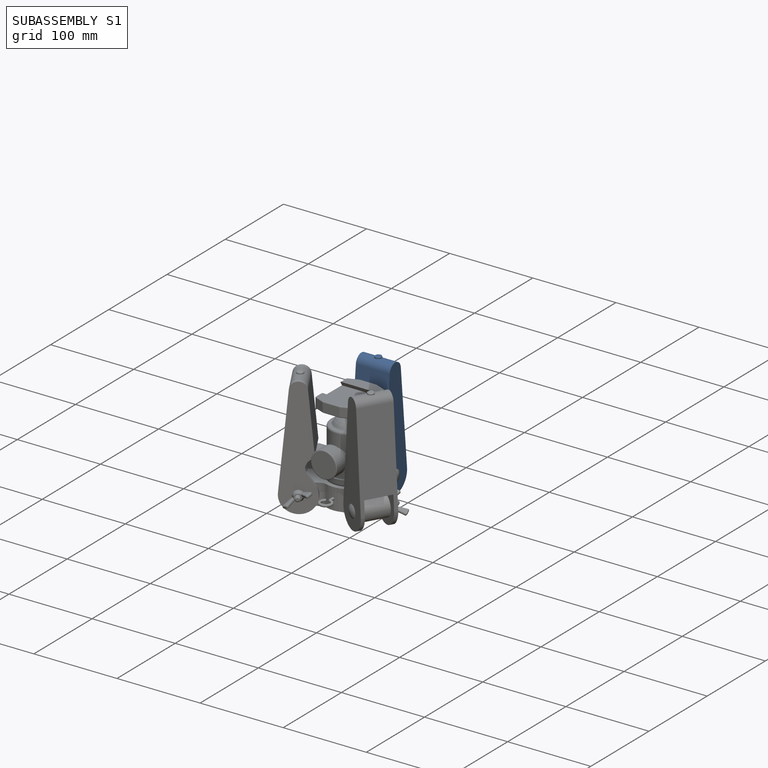
[diagram: subassembly S1 — assembled]
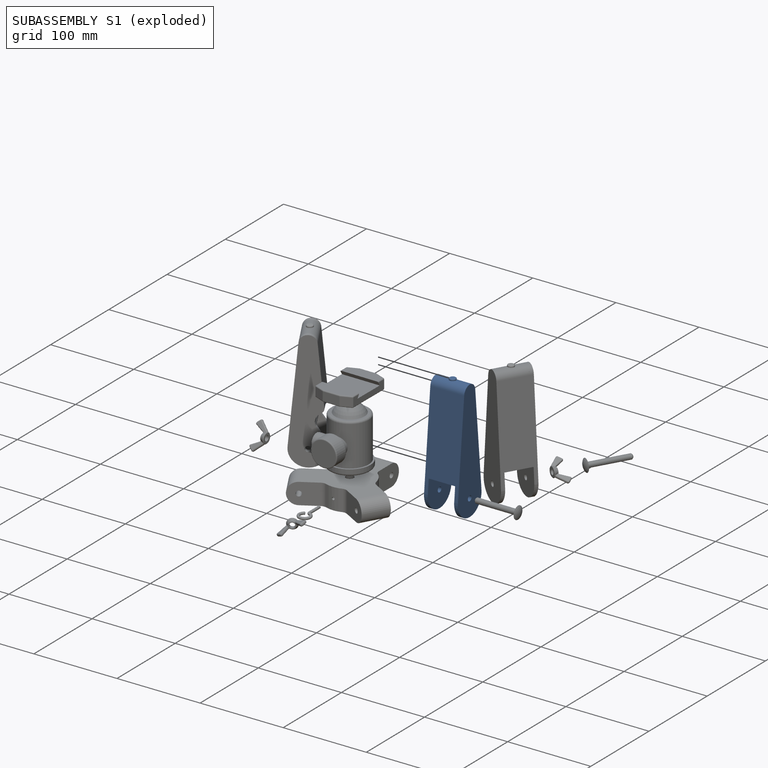
[diagram: subassembly S1 — exploded]
SUBASSEMBLY S1 — 4 components (P2, P5, P13, P14), of which 0 recipe-attached; toured below.
Held by: REVOLUTE mate "Revolute 2" to P16; FASTENED mate "Fastened 8" to P3; FASTENED mate "Fastened 7" to P12.
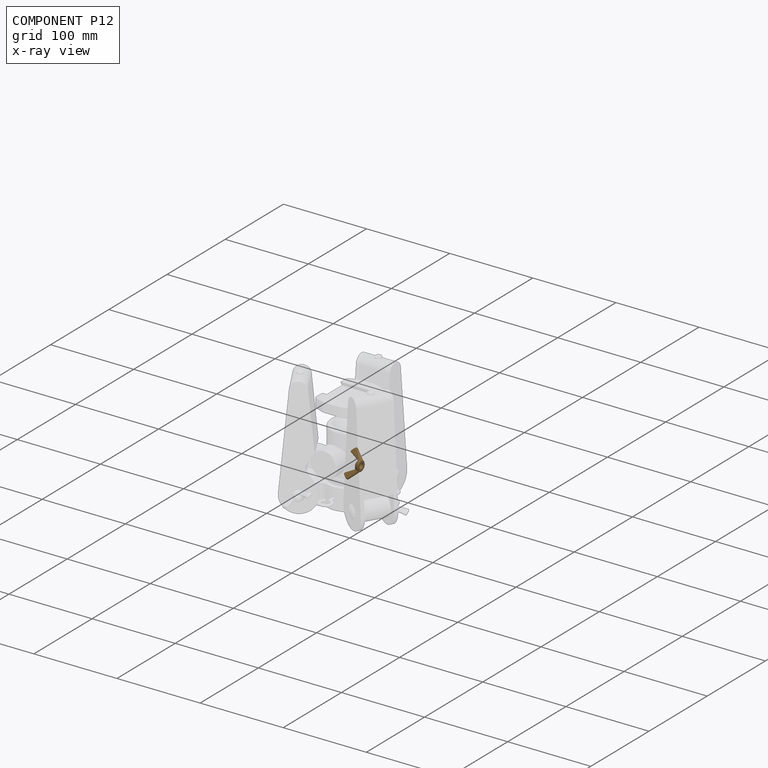
[diagram: component P12 — x-ray view]
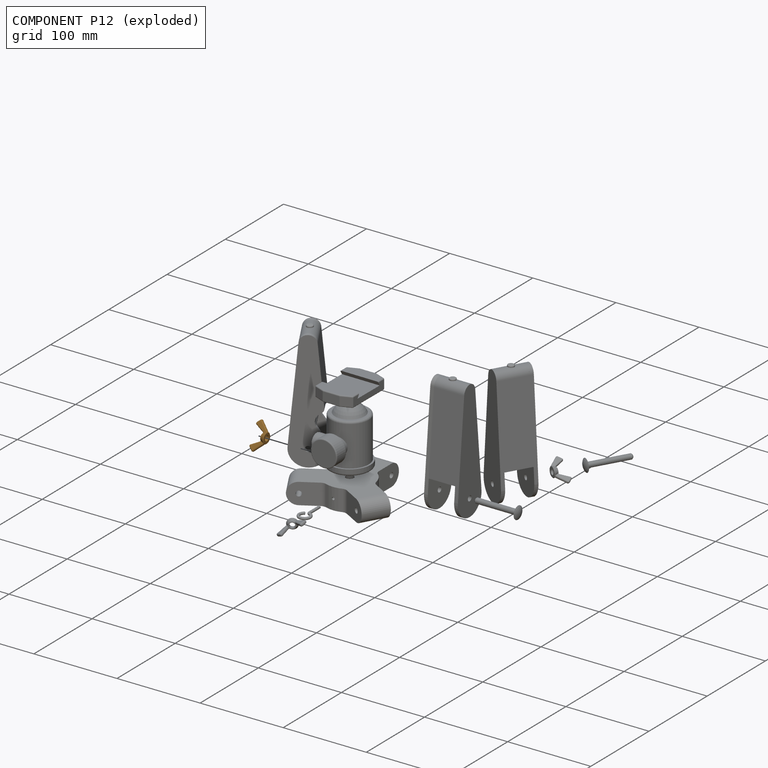
[diagram: component P12 — exploded]
COMPONENT P12 — geometry summary (no construction recipe available for this part):
  bounding box: 33.4 x 16.8 x 13.0 mm
  B-rep topology: 1 solid, 41 faces, 198 edges
  volume: 898 mm^3 (12% of its bounding box)
  symmetry: 2-fold rotationally symmetric about the z axis; mirror-symmetric across its x mid-plane, y mid-plane
Held by: FASTENED mate "Fastened 7" to P2.
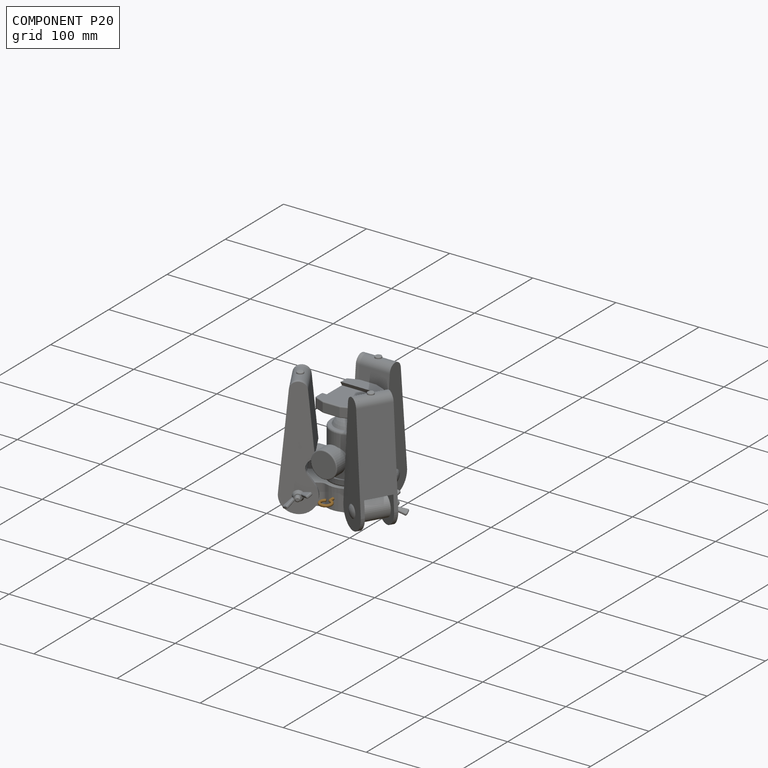
[diagram: component P20 — assembled]
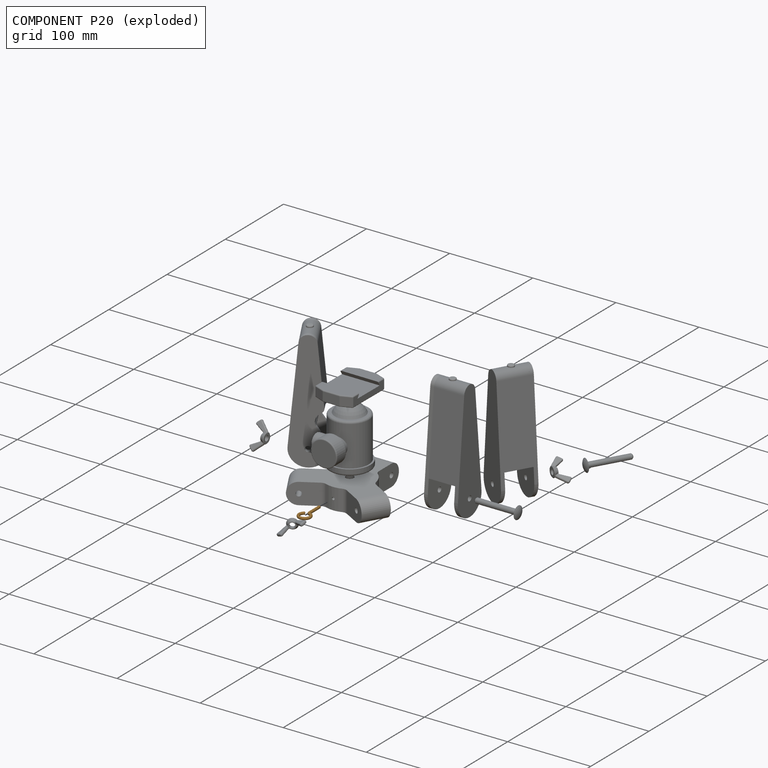
[diagram: component P20 — exploded]
COMPONENT P20 — geometry summary (no construction recipe available for this part):
  bounding box: 34.0 x 17.2 x 3.2 mm
  B-rep topology: 1 solid, 6 faces, 20 edges
  volume: 433 mm^3 (23% of its bounding box)
  symmetry: mirror-symmetric across its z mid-plane
Held by: FASTENED mate "Fastened 2" to P16.
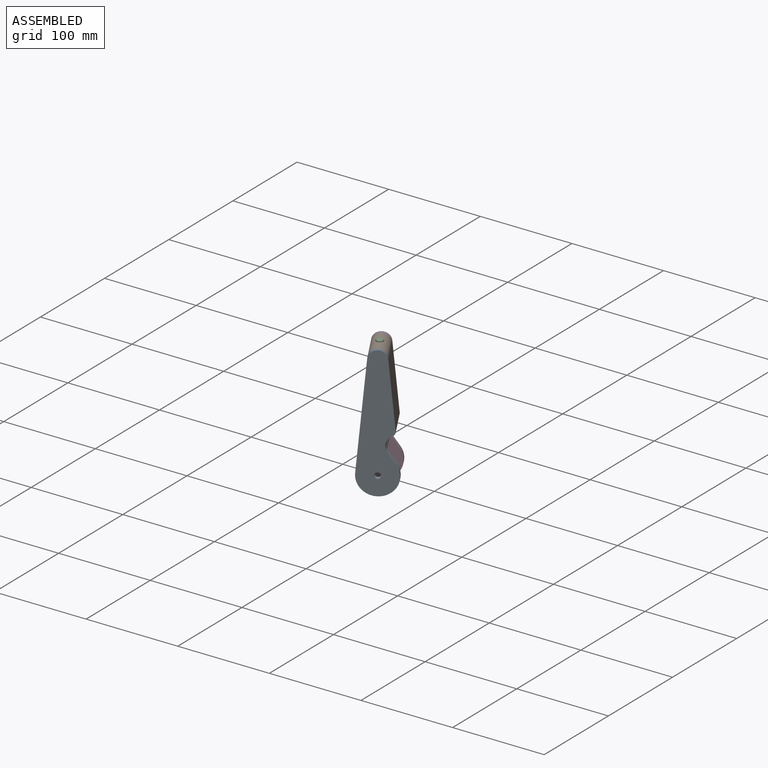
[diagram: subassembly S0 — assembled view]
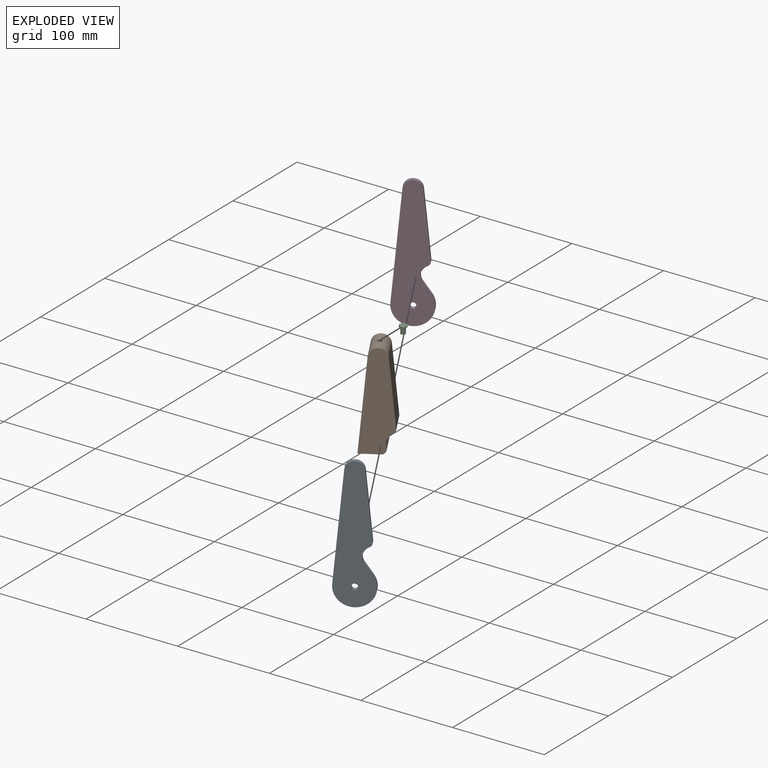
[diagram: subassembly S0 — exploded view]
SUBASSEMBLY S0 TOUR — 4 components, shown here in isolation at its own camera.

INTERNAL MATES
  1. FASTENED "Fastened 3": P4 <-> P1, direction (-0.001, 0.000, -1.000) through (-42.44, -24.50, 104.14) mm
  2. FASTENED "Fastened 1": P1 <-> P8, direction (-0.500, 0.866, 0.000) through (-50.38, -10.75, 101.60) mm
  3. FASTENED "Fastened 2": P1 <-> P0, direction (0.500, -0.866, 0.000) through (-34.50, -38.25, 101.60) mm
  4. FASTENED "Fastened 1": P1 <-> P8, direction (-0.500, 0.866, 0.000) through (-50.38, -10.75, 101.60) mm
  5. FASTENED "Fastened 3": P4 <-> P1, direction (-0.001, 0.000, -1.000) through (-42.44, -24.50, 104.14) mm
  6. FASTENED "Fastened 2": P1 <-> P0, direction (0.500, -0.866, 0.000) through (-34.50, -38.25, 101.60) mm

ASSEMBLY ORDER (within the subassembly)
  1. P1 — the base component [order verified]
  2. P4 [order verified]
  3. P8 [order verified]
  4. P0 [order verified]
Order-tag legend:
  [order verified] — this step's position reverses a verified removal order: the component was checked to insert without passing through the ones already placed.
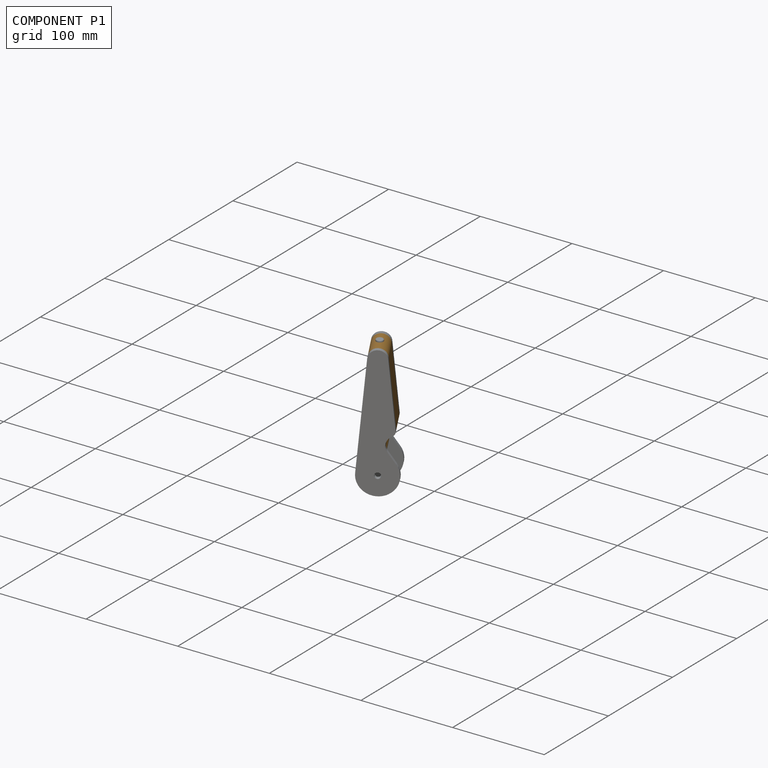
[diagram: component P1 — assembled]
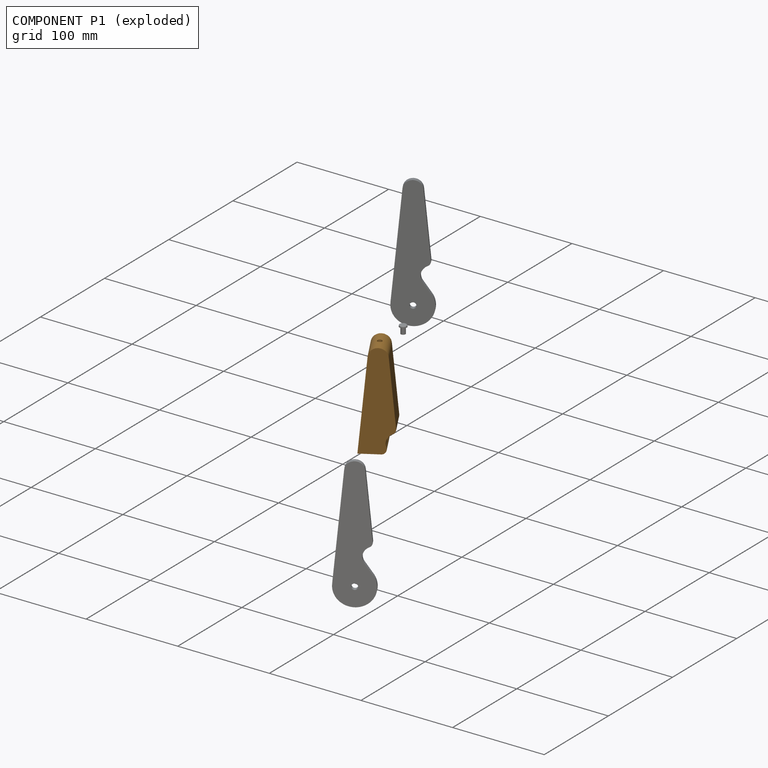
[diagram: component P1 — exploded]
COMPONENT P1 — geometry summary (no construction recipe available for this part):
  bounding box: 94.0 x 79.3 x 64.1 mm
  B-rep topology: 1 solid, 11 faces, 50 edges
  volume: 83035 mm^3 (17% of its bounding box)
Held by: FASTENED mate "Fastened 3" to P4; FASTENED mate "Fastened 1" to P8; FASTENED mate "Fastened 2" to P0; FASTENED mate "Fastened 1" to P8; FASTENED mate "Fastened 3" to P4; FASTENED mate "Fastened 2" to P0.
